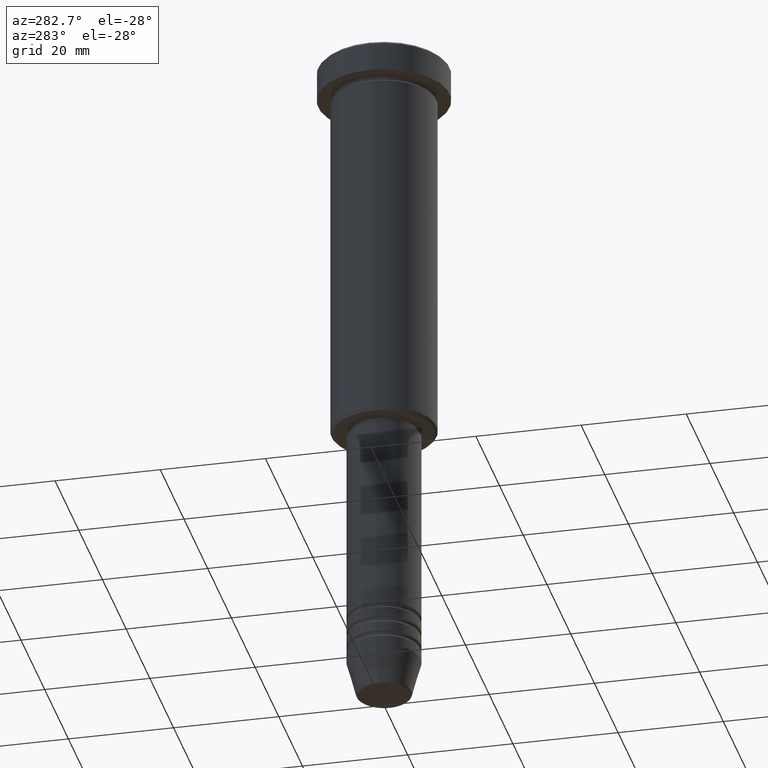
[diagram: clean part render]
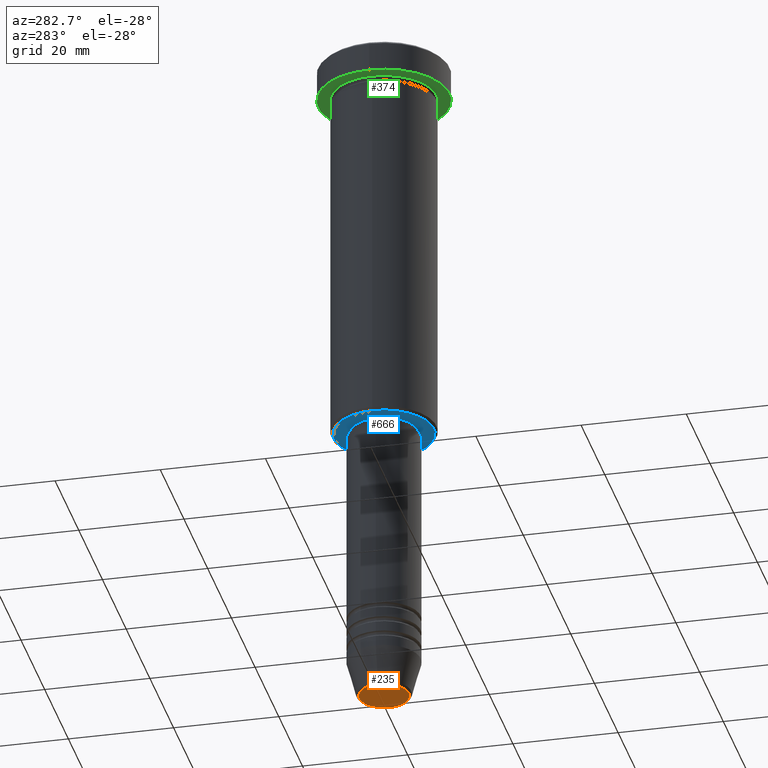
[diagram: same view with three faces highlighted in distinct colors, each labeled with its STEP entity id]
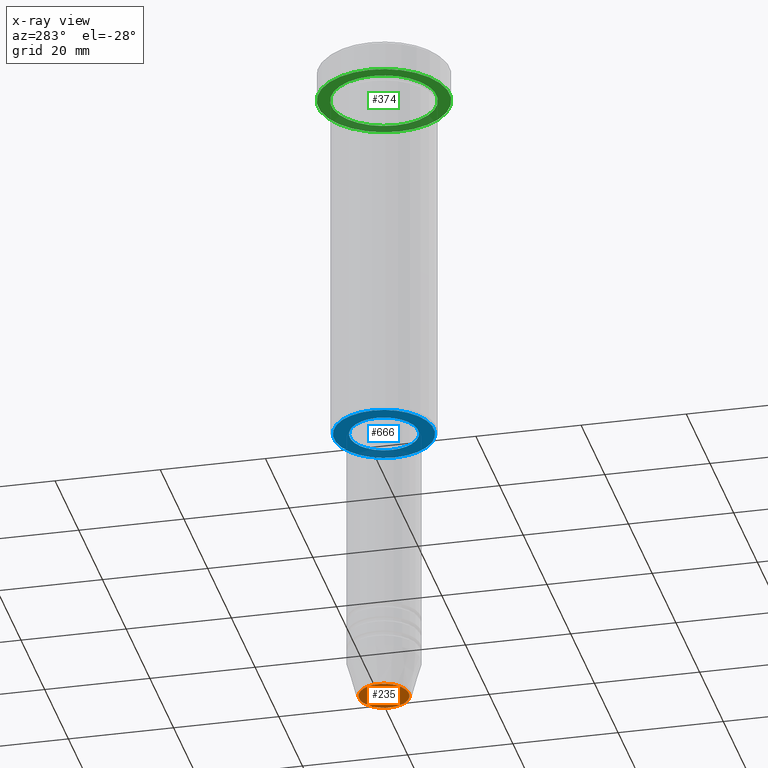
[diagram: x-ray of the same camera — body ghosted, the three highlighted faces saturated]
A machine part, auxiliary view with three faces highlighted in distinct colors.
The next image is the same camera in x-ray (body ghosted, the three faces saturated) — at least one of them is partly hidden behind the body in this view.
Their STEP definitions:

[orange] entity #235 — the highlighted planar face has unit normal (0, -0, 1).
#76 = DIRECTION ( 'NONE',  ( 0.000000000000000000, 0.000000000000000000, -1.000000000000000000 ) ) ;
#106 = AXIS2_PLACEMENT_3D ( 'NONE', #1053, #758, #878 ) ;
#117 = FACE_OUTER_BOUND ( 'NONE', #582, .T. ) ;
#179 = ORIENTED_EDGE ( 'NONE', *, *, #840, .T. ) ;
#209 = PLANE ( 'NONE',  #906 ) ;
#235 = ADVANCED_FACE ( 'NONE', ( #117 ), #209, .F. ) ;
#388 = DIRECTION ( 'NONE',  ( 0.000000000000000000, -0.000000000000000000, 1.000000000000000000 ) ) ;
#417 = AXIS2_PLACEMENT_3D ( 'NONE', #1152, #76, #785 ) ;
#473 = CARTESIAN_POINT ( 'NONE',  ( 0.000000000000000000, 0.000000000000000000, -131.0000000000000000 ) ) ;
#580 = CARTESIAN_POINT ( 'NONE',  ( 4.740692158992654726, 0.000000000000000000, -131.0000000000000000 ) ) ;
#582 = EDGE_LOOP ( 'NONE', ( #1067, #179 ) ) ;
#618 = CIRCLE ( 'NONE', #417, 4.740692158992654726 ) ;
#645 = DIRECTION ( 'NONE',  ( 1.000000000000000000, 0.000000000000000000, 0.000000000000000000 ) ) ;
#758 = DIRECTION ( 'NONE',  ( 0.000000000000000000, 0.000000000000000000, -1.000000000000000000 ) ) ;
#785 = DIRECTION ( 'NONE',  ( 1.000000000000000000, 0.000000000000000000, 0.000000000000000000 ) ) ;
#825 = EDGE_CURVE ( 'NONE', #1124, #879, #963, .T. ) ;
#840 = EDGE_CURVE ( 'NONE', #879, #1124, #618, .T. ) ;
#878 = DIRECTION ( 'NONE',  ( 1.000000000000000000, 0.000000000000000000, 0.000000000000000000 ) ) ;
#879 = VERTEX_POINT ( 'NONE', #888 ) ;
#888 = CARTESIAN_POINT ( 'NONE',  ( -4.740692158992654726, 6.101402971097978774E-16, -131.0000000000000000 ) ) ;
#906 = AXIS2_PLACEMENT_3D ( 'NONE', #473, #388, #645 ) ;
#963 = CIRCLE ( 'NONE', #106, 4.740692158992654726 ) ;
#1053 = CARTESIAN_POINT ( 'NONE',  ( 0.000000000000000000, 0.000000000000000000, -131.0000000000000000 ) ) ;
#1067 = ORIENTED_EDGE ( 'NONE', *, *, #825, .T. ) ;
#1124 = VERTEX_POINT ( 'NONE', #580 ) ;
#1152 = CARTESIAN_POINT ( 'NONE',  ( 0.000000000000000000, 0.000000000000000000, -131.0000000000000000 ) ) ;

[blue] entity #666 — the highlighted planar face has unit normal (0, 0, -1).
#71 = ORIENTED_EDGE ( 'NONE', *, *, #368, .T. ) ;
#81 = DIRECTION ( 'NONE',  ( -0.000000000000000000, -0.000000000000000000, 1.000000000000000000 ) ) ;
#132 = AXIS2_PLACEMENT_3D ( 'NONE', #239, #411, #691 ) ;
#169 = DIRECTION ( 'NONE',  ( -1.000000000000000000, 0.000000000000000000, 0.000000000000000000 ) ) ;
#170 = CIRCLE ( 'NONE', #279, 9.500000000000008882 ) ;
#187 = FACE_BOUND ( 'NONE', #800, .T. ) ;
#233 = ORIENTED_EDGE ( 'NONE', *, *, #643, .T. ) ;
#239 = CARTESIAN_POINT ( 'NONE',  ( 0.000000000000000000, 0.000000000000000000, -75.99999999999998579 ) ) ;
#262 = VERTEX_POINT ( 'NONE', #822 ) ;
#279 = AXIS2_PLACEMENT_3D ( 'NONE', #995, #983, #169 ) ;
#297 = AXIS2_PLACEMENT_3D ( 'NONE', #372, #367, #639 ) ;
#338 = CIRCLE ( 'NONE', #810, 6.500000000000000000 ) ;
#362 = FACE_OUTER_BOUND ( 'NONE', #944, .T. ) ;
#367 = DIRECTION ( 'NONE',  ( -0.000000000000000000, -0.000000000000000000, 1.000000000000000000 ) ) ;
#368 = EDGE_CURVE ( 'NONE', #740, #998, #849, .T. ) ;
#372 = CARTESIAN_POINT ( 'NONE',  ( 0.000000000000000000, 0.000000000000000000, -75.99999999999998579 ) ) ;
#411 = DIRECTION ( 'NONE',  ( 0.000000000000000000, 0.000000000000000000, -1.000000000000000000 ) ) ;
#435 = DIRECTION ( 'NONE',  ( 0.000000000000000000, 0.000000000000000000, -1.000000000000000000 ) ) ;
#455 = CARTESIAN_POINT ( 'NONE',  ( 0.000000000000000000, 0.000000000000000000, -75.99999999999998579 ) ) ;
#476 = ORIENTED_EDGE ( 'NONE', *, *, #495, .T. ) ;
#495 = EDGE_CURVE ( 'NONE', #998, #740, #170, .T. ) ;
#535 = PLANE ( 'NONE',  #924 ) ;
#573 = CARTESIAN_POINT ( 'NONE',  ( -9.500000000000008882, 1.194030629168669864E-15, -75.99999999999998579 ) ) ;
#597 = VERTEX_POINT ( 'NONE', #904 ) ;
#607 = EDGE_CURVE ( 'NONE', #597, #262, #338, .T. ) ;
#612 = CARTESIAN_POINT ( 'NONE',  ( 0.000000000000000000, 10.00000000000000000, -75.99999999999998579 ) ) ;
#639 = DIRECTION ( 'NONE',  ( 1.000000000000000000, 0.000000000000000000, 0.000000000000000000 ) ) ;
#643 = EDGE_CURVE ( 'NONE', #262, #597, #988, .T. ) ;
#666 = ADVANCED_FACE ( 'NONE', ( #362, #187 ), #535, .T. ) ;
#691 = DIRECTION ( 'NONE',  ( -1.000000000000000000, 0.000000000000000000, 0.000000000000000000 ) ) ;
#740 = VERTEX_POINT ( 'NONE', #573 ) ;
#800 = EDGE_LOOP ( 'NONE', ( #951, #233 ) ) ;
#810 = AXIS2_PLACEMENT_3D ( 'NONE', #455, #81, #1182 ) ;
#822 = CARTESIAN_POINT ( 'NONE',  ( -6.500000000000000000, 7.960204194457795477E-16, -75.99999999999998579 ) ) ;
#849 = CIRCLE ( 'NONE', #132, 9.500000000000008882 ) ;
#904 = CARTESIAN_POINT ( 'NONE',  ( 6.500000000000000000, 0.000000000000000000, -75.99999999999998579 ) ) ;
#911 = DIRECTION ( 'NONE',  ( -1.000000000000000000, 0.000000000000000000, -0.000000000000000000 ) ) ;
#924 = AXIS2_PLACEMENT_3D ( 'NONE', #612, #435, #911 ) ;
#944 = EDGE_LOOP ( 'NONE', ( #476, #71 ) ) ;
#951 = ORIENTED_EDGE ( 'NONE', *, *, #607, .T. ) ;
#983 = DIRECTION ( 'NONE',  ( 0.000000000000000000, 0.000000000000000000, -1.000000000000000000 ) ) ;
#988 = CIRCLE ( 'NONE', #297, 6.500000000000000000 ) ;
#995 = CARTESIAN_POINT ( 'NONE',  ( 0.000000000000000000, 0.000000000000000000, -75.99999999999998579 ) ) ;
#998 = VERTEX_POINT ( 'NONE', #1022 ) ;
#1022 = CARTESIAN_POINT ( 'NONE',  ( 9.500000000000008882, 0.000000000000000000, -75.99999999999998579 ) ) ;
#1182 = DIRECTION ( 'NONE',  ( 1.000000000000000000, 0.000000000000000000, 0.000000000000000000 ) ) ;

[green] entity #374 — the highlighted planar face has unit normal (0, 0, -1).
#41 = FACE_BOUND ( 'NONE', #962, .T. ) ;
#112 = DIRECTION ( 'NONE',  ( -1.000000000000000000, 0.000000000000000000, 0.000000000000000000 ) ) ;
#133 = ORIENTED_EDGE ( 'NONE', *, *, #387, .F. ) ;
#136 = EDGE_LOOP ( 'NONE', ( #133, #654 ) ) ;
#138 = DIRECTION ( 'NONE',  ( -1.000000000000000000, 0.000000000000000000, -0.000000000000000000 ) ) ;
#186 = CIRCLE ( 'NONE', #320, 12.50000000000000000 ) ;
#220 = ORIENTED_EDGE ( 'NONE', *, *, #970, .T. ) ;
#234 = CARTESIAN_POINT ( 'NONE',  ( 0.000000000000000000, 0.000000000000000000, -5.999999999999996447 ) ) ;
#246 = DIRECTION ( 'NONE',  ( 1.000000000000000000, 0.000000000000000000, 0.000000000000000000 ) ) ;
#280 = CARTESIAN_POINT ( 'NONE',  ( 10.00000000000000000, 1.224646799147353256E-15, -5.999999999999996447 ) ) ;
#305 = VERTEX_POINT ( 'NONE', #940 ) ;
#313 = CARTESIAN_POINT ( 'NONE',  ( 0.000000000000000000, 0.000000000000000000, -5.999999999999996447 ) ) ;
#320 = AXIS2_PLACEMENT_3D ( 'NONE', #234, #599, #1142 ) ;
#324 = DIRECTION ( 'NONE',  ( 0.000000000000000000, 0.000000000000000000, -1.000000000000000000 ) ) ;
#350 = ORIENTED_EDGE ( 'NONE', *, *, #695, .T. ) ;
#353 = CARTESIAN_POINT ( 'NONE',  ( -10.00000000000000000, 0.000000000000000000, -5.999999999999996447 ) ) ;
#374 = ADVANCED_FACE ( 'NONE', ( #41, #494 ), #513, .T. ) ;
#387 = EDGE_CURVE ( 'NONE', #1141, #305, #1101, .T. ) ;
#406 = EDGE_CURVE ( 'NONE', #305, #1141, #186, .T. ) ;
#494 = FACE_OUTER_BOUND ( 'NONE', #136, .T. ) ;
#510 = CARTESIAN_POINT ( 'NONE',  ( 0.000000000000000000, 12.50000000000000000, -5.999999999999996447 ) ) ;
#513 = PLANE ( 'NONE',  #736 ) ;
#540 = CIRCLE ( 'NONE', #593, 10.00000000000000000 ) ;
#546 = CARTESIAN_POINT ( 'NONE',  ( 0.000000000000000000, 0.000000000000000000, -5.999999999999996447 ) ) ;
#572 = CARTESIAN_POINT ( 'NONE',  ( 12.50000000000000000, 0.000000000000000000, -5.999999999999996447 ) ) ;
#593 = AXIS2_PLACEMENT_3D ( 'NONE', #546, #720, #112 ) ;
#599 = DIRECTION ( 'NONE',  ( -0.000000000000000000, -0.000000000000000000, 1.000000000000000000 ) ) ;
#626 = DIRECTION ( 'NONE',  ( -0.000000000000000000, -0.000000000000000000, 1.000000000000000000 ) ) ;
#638 = CIRCLE ( 'NONE', #754, 10.00000000000000000 ) ;
#654 = ORIENTED_EDGE ( 'NONE', *, *, #406, .F. ) ;
#674 = DIRECTION ( 'NONE',  ( -0.000000000000000000, -0.000000000000000000, 1.000000000000000000 ) ) ;
#686 = VERTEX_POINT ( 'NONE', #280 ) ;
#695 = EDGE_CURVE ( 'NONE', #686, #914, #638, .T. ) ;
#720 = DIRECTION ( 'NONE',  ( -0.000000000000000000, -0.000000000000000000, 1.000000000000000000 ) ) ;
#736 = AXIS2_PLACEMENT_3D ( 'NONE', #510, #324, #138 ) ;
#754 = AXIS2_PLACEMENT_3D ( 'NONE', #817, #626, #1012 ) ;
#817 = CARTESIAN_POINT ( 'NONE',  ( 0.000000000000000000, 0.000000000000000000, -5.999999999999996447 ) ) ;
#914 = VERTEX_POINT ( 'NONE', #353 ) ;
#940 = CARTESIAN_POINT ( 'NONE',  ( -12.50000000000000000, 1.530808498934191521E-15, -5.999999999999996447 ) ) ;
#962 = EDGE_LOOP ( 'NONE', ( #220, #350 ) ) ;
#970 = EDGE_CURVE ( 'NONE', #914, #686, #540, .T. ) ;
#1012 = DIRECTION ( 'NONE',  ( -1.000000000000000000, 0.000000000000000000, 0.000000000000000000 ) ) ;
#1083 = AXIS2_PLACEMENT_3D ( 'NONE', #313, #674, #246 ) ;
#1101 = CIRCLE ( 'NONE', #1083, 12.50000000000000000 ) ;
#1141 = VERTEX_POINT ( 'NONE', #572 ) ;
#1142 = DIRECTION ( 'NONE',  ( 1.000000000000000000, 0.000000000000000000, 0.000000000000000000 ) ) ;